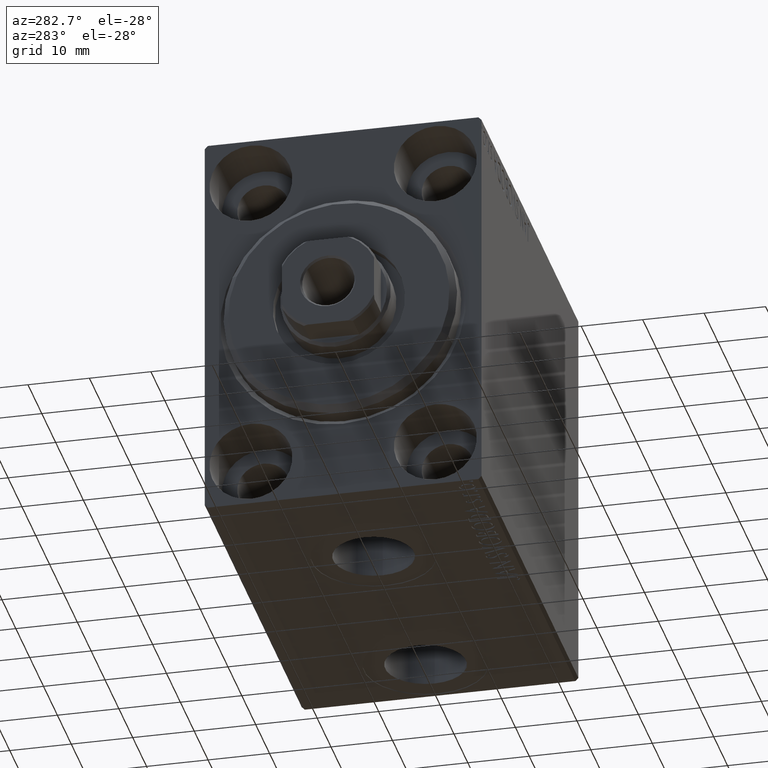
[diagram: clean part render]
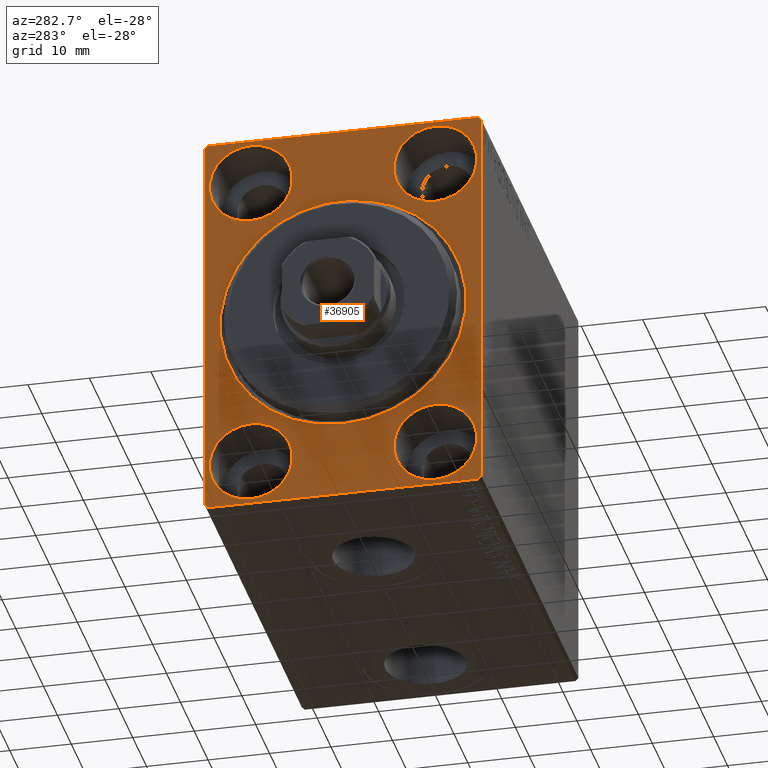
[diagram: same view with one face highlighted and labeled with its STEP entity id]
A machine part, auxiliary view. The second image highlights one B-rep face of the part: STEP entity #36905.
In plain terms, the highlighted planar face has unit normal (1, 0, 0).
Its self-contained STEP definition (entity closure, byte-faithful):
#57 = EDGE_LOOP ( 'NONE', ( #43364, #41787, #41578, #31301, #44993, #20171, #8469, #32865 ) ) ;
#558 = EDGE_CURVE ( 'NONE', #10505, #17862, #17185, .T. ) ;
#821 = CARTESIAN_POINT ( 'NONE',  ( 0.000000000000000000, 0.000000000000000000, 0.000000000000000000 ) ) ;
#833 = DIRECTION ( 'NONE',  ( 0.000000000000000000, 0.000000000000000000, 1.000000000000000000 ) ) ;
#902 = ORIENTED_EDGE ( 'NONE', *, *, #14904, .F. ) ;
#1113 = CIRCLE ( 'NONE', #15013, 6.749999999999999112 ) ;
#1177 = AXIS2_PLACEMENT_3D ( 'NONE', #29217, #8168, #12051 ) ;
#1277 = DIRECTION ( 'NONE',  ( -0.000000000000000000, 0.7071067811865425767, -0.7071067811865525687 ) ) ;
#1288 = ORIENTED_EDGE ( 'NONE', *, *, #13707, .F. ) ;
#1508 = CARTESIAN_POINT ( 'NONE',  ( 0.000000000000000000, -14.99999999999999645, 31.75000000000000000 ) ) ;
#1538 = FACE_OUTER_BOUND ( 'NONE', #57, .T. ) ;
#1744 = EDGE_CURVE ( 'NONE', #7949, #28147, #11422, .T. ) ;
#1944 = DIRECTION ( 'NONE',  ( -1.000000000000000000, 0.000000000000000000, 0.000000000000000000 ) ) ;
#2266 = CARTESIAN_POINT ( 'NONE',  ( 0.000000000000000000, 14.99999999999999645, -18.25000000000000355 ) ) ;
#2446 = CARTESIAN_POINT ( 'NONE',  ( 0.000000000000000000, 22.49999999999999289, 32.50000000000000000 ) ) ;
#2693 = LINE ( 'NONE', #38118, #2952 ) ;
#2952 = VECTOR ( 'NONE', #13429, 1000.000000000000000 ) ;
#2986 = VERTEX_POINT ( 'NONE', #23923 ) ;
#3179 = VERTEX_POINT ( 'NONE', #24994 ) ;
#3229 = DIRECTION ( 'NONE',  ( 1.000000000000000000, 0.000000000000000000, 0.000000000000000000 ) ) ;
#3465 = VERTEX_POINT ( 'NONE', #20168 ) ;
#4115 = CARTESIAN_POINT ( 'NONE',  ( 0.000000000000000000, 22.50000000000000000, -32.50000000000000711 ) ) ;
#4753 = DIRECTION ( 'NONE',  ( -1.000000000000000000, 0.000000000000000000, 0.000000000000000000 ) ) ;
#4797 = CARTESIAN_POINT ( 'NONE',  ( 0.000000000000000000, -22.50000000000000711, 31.99999999999999289 ) ) ;
#5031 = ORIENTED_EDGE ( 'NONE', *, *, #29304, .F. ) ;
#5114 = CIRCLE ( 'NONE', #40886, 20.00000000000000355 ) ;
#5692 = VERTEX_POINT ( 'NONE', #1508 ) ;
#6098 = LINE ( 'NONE', #2446, #41405 ) ;
#6295 = VERTEX_POINT ( 'NONE', #16243 ) ;
#6524 = CIRCLE ( 'NONE', #32103, 6.749999999999999112 ) ;
#6542 = ORIENTED_EDGE ( 'NONE', *, *, #6618, .F. ) ;
#6618 = EDGE_CURVE ( 'NONE', #37520, #25719, #32455, .T. ) ;
#7237 = CARTESIAN_POINT ( 'NONE',  ( 0.000000000000000000, -15.00000000000000355, -25.00000000000000000 ) ) ;
#7627 = VECTOR ( 'NONE', #18675, 1000.000000000000000 ) ;
#7944 = DIRECTION ( 'NONE',  ( 0.000000000000000000, 0.000000000000000000, -1.000000000000000000 ) ) ;
#7949 = VERTEX_POINT ( 'NONE', #12255 ) ;
#8168 = DIRECTION ( 'NONE',  ( -1.000000000000000000, 0.000000000000000000, 0.000000000000000000 ) ) ;
#8469 = ORIENTED_EDGE ( 'NONE', *, *, #22680, .F. ) ;
#8572 = CARTESIAN_POINT ( 'NONE',  ( 0.000000000000000000, 21.99999999999999289, 32.50000000000000000 ) ) ;
#9114 = CIRCLE ( 'NONE', #36885, 6.749999999999999112 ) ;
#9358 = ORIENTED_EDGE ( 'NONE', *, *, #32756, .F. ) ;
#9675 = VERTEX_POINT ( 'NONE', #26550 ) ;
#10505 = VERTEX_POINT ( 'NONE', #4797 ) ;
#10754 = CIRCLE ( 'NONE', #12990, 20.00000000000000355 ) ;
#11195 = CARTESIAN_POINT ( 'NONE',  ( 0.000000000000000000, -14.99999999999999645, 25.00000000000000000 ) ) ;
#11416 = CIRCLE ( 'NONE', #44280, 6.749999999999999112 ) ;
#11422 = LINE ( 'NONE', #4115, #35916 ) ;
#12051 = DIRECTION ( 'NONE',  ( 0.000000000000000000, 0.000000000000000000, 1.000000000000000000 ) ) ;
#12255 = CARTESIAN_POINT ( 'NONE',  ( 0.000000000000000000, 22.50000000000000000, -32.00000000000002132 ) ) ;
#12350 = VECTOR ( 'NONE', #42113, 1000.000000000000000 ) ;
#12678 = EDGE_LOOP ( 'NONE', ( #35898, #19641 ) ) ;
#12990 = AXIS2_PLACEMENT_3D ( 'NONE', #24053, #3229, #15113 ) ;
#13429 = DIRECTION ( 'NONE',  ( -0.000000000000000000, -0.7071067811865378028, 0.7071067811865573427 ) ) ;
#13539 = DIRECTION ( 'NONE',  ( -0.000000000000000000, 0.7071067811865474617, 0.7071067811865474617 ) ) ;
#13707 = EDGE_CURVE ( 'NONE', #25719, #37520, #9114, .T. ) ;
#14054 = CARTESIAN_POINT ( 'NONE',  ( 0.000000000000000000, 22.50000000000000000, -32.00000000000002132 ) ) ;
#14431 = EDGE_LOOP ( 'NONE', ( #43424, #37532 ) ) ;
#14781 = VERTEX_POINT ( 'NONE', #23577 ) ;
#14904 = EDGE_CURVE ( 'NONE', #5692, #38403, #1113, .T. ) ;
#15006 = DIRECTION ( 'NONE',  ( -1.000000000000000000, 0.000000000000000000, 0.000000000000000000 ) ) ;
#15013 = AXIS2_PLACEMENT_3D ( 'NONE', #11195, #39102, #24930 ) ;
#15041 = CIRCLE ( 'NONE', #1177, 6.749999999999999112 ) ;
#15113 = DIRECTION ( 'NONE',  ( 0.000000000000000000, 0.000000000000000000, -1.000000000000000000 ) ) ;
#16243 = CARTESIAN_POINT ( 'NONE',  ( 0.000000000000000000, 15.00000000000000355, 31.75000000000000000 ) ) ;
#17185 = LINE ( 'NONE', #17640, #34410 ) ;
#17640 = CARTESIAN_POINT ( 'NONE',  ( 0.000000000000000000, -22.50000000000000711, 31.99999999999999289 ) ) ;
#17730 = CARTESIAN_POINT ( 'NONE',  ( 0.000000000000000000, 14.99999999999999645, -25.00000000000000000 ) ) ;
#17862 = VERTEX_POINT ( 'NONE', #38851 ) ;
#18022 = CARTESIAN_POINT ( 'NONE',  ( 0.000000000000000000, 0.000000000000000000, 0.000000000000000000 ) ) ;
#18443 = LINE ( 'NONE', #35604, #7627 ) ;
#18675 = DIRECTION ( 'NONE',  ( 0.000000000000000000, 0.000000000000000000, -1.000000000000000000 ) ) ;
#18704 = DIRECTION ( 'NONE',  ( 0.000000000000000000, 0.000000000000000000, 1.000000000000000000 ) ) ;
#18928 = FACE_BOUND ( 'NONE', #40700, .T. ) ;
#19088 = CARTESIAN_POINT ( 'NONE',  ( 0.000000000000000000, -15.00000000000000355, -31.75000000000000000 ) ) ;
#19558 = DIRECTION ( 'NONE',  ( 0.000000000000000000, 0.000000000000000000, 1.000000000000000000 ) ) ;
#19641 = ORIENTED_EDGE ( 'NONE', *, *, #43394, .T. ) ;
#19648 = CARTESIAN_POINT ( 'NONE',  ( 0.000000000000000000, 15.00000000000000355, 25.00000000000000000 ) ) ;
#19772 = LINE ( 'NONE', #8572, #32050 ) ;
#20168 = CARTESIAN_POINT ( 'NONE',  ( 0.000000000000000000, -15.00000000000000355, -18.25000000000000355 ) ) ;
#20171 = ORIENTED_EDGE ( 'NONE', *, *, #27983, .T. ) ;
#20930 = EDGE_CURVE ( 'NONE', #2986, #14781, #10754, .T. ) ;
#21871 = CARTESIAN_POINT ( 'NONE',  ( 0.000000000000000000, 14.99999999999999645, -25.00000000000000000 ) ) ;
#22264 = CARTESIAN_POINT ( 'NONE',  ( 0.000000000000000000, 22.49999999999999289, 31.99999999999999289 ) ) ;
#22559 = EDGE_CURVE ( 'NONE', #29574, #3465, #6524, .T. ) ;
#22680 = EDGE_CURVE ( 'NONE', #37955, #37694, #30298, .T. ) ;
#23577 = CARTESIAN_POINT ( 'NONE',  ( 0.000000000000000000, 2.449293598294706907E-15, -20.00000000000000355 ) ) ;
#23662 = LINE ( 'NONE', #14054, #38408 ) ;
#23812 = EDGE_CURVE ( 'NONE', #10505, #36919, #18443, .T. ) ;
#23923 = CARTESIAN_POINT ( 'NONE',  ( 0.000000000000000000, 0.000000000000000000, 20.00000000000000355 ) ) ;
#24053 = CARTESIAN_POINT ( 'NONE',  ( 0.000000000000000000, 0.000000000000000000, 0.000000000000000000 ) ) ;
#24194 = EDGE_LOOP ( 'NONE', ( #1288, #6542 ) ) ;
#24930 = DIRECTION ( 'NONE',  ( 0.000000000000000000, 0.000000000000000000, 1.000000000000000000 ) ) ;
#24994 = CARTESIAN_POINT ( 'NONE',  ( 0.000000000000000000, 15.00000000000000355, 18.25000000000000355 ) ) ;
#25103 = CARTESIAN_POINT ( 'NONE',  ( 0.000000000000000000, -22.50000000000000711, -32.00000000000000711 ) ) ;
#25336 = FACE_BOUND ( 'NONE', #24194, .T. ) ;
#25719 = VERTEX_POINT ( 'NONE', #2266 ) ;
#25847 = CARTESIAN_POINT ( 'NONE',  ( 0.000000000000000000, 14.99999999999999645, -31.75000000000000000 ) ) ;
#26550 = CARTESIAN_POINT ( 'NONE',  ( 0.000000000000000000, 21.99999999999999289, 32.50000000000000000 ) ) ;
#26849 = EDGE_CURVE ( 'NONE', #3465, #29574, #40556, .T. ) ;
#26875 = CARTESIAN_POINT ( 'NONE',  ( 0.000000000000000000, -15.00000000000000355, -25.00000000000000000 ) ) ;
#27317 = DIRECTION ( 'NONE',  ( 0.000000000000000000, -0.7071067811865376918, -0.7071067811865573427 ) ) ;
#27983 = EDGE_CURVE ( 'NONE', #7949, #37694, #23662, .T. ) ;
#28147 = VERTEX_POINT ( 'NONE', #22264 ) ;
#28178 = CARTESIAN_POINT ( 'NONE',  ( 0.000000000000000000, -22.50000000000000711, -32.50000000000000711 ) ) ;
#29217 = CARTESIAN_POINT ( 'NONE',  ( 0.000000000000000000, 15.00000000000000355, 25.00000000000000000 ) ) ;
#29220 = FACE_BOUND ( 'NONE', #12678, .T. ) ;
#29304 = EDGE_CURVE ( 'NONE', #38403, #5692, #11416, .T. ) ;
#29574 = VERTEX_POINT ( 'NONE', #19088 ) ;
#30298 = LINE ( 'NONE', #28178, #12350 ) ;
#31301 = ORIENTED_EDGE ( 'NONE', *, *, #40314, .T. ) ;
#31964 = DIRECTION ( 'NONE',  ( 1.000000000000000000, 0.000000000000000000, 0.000000000000000000 ) ) ;
#32050 = VECTOR ( 'NONE', #1277, 999.9999999999998863 ) ;
#32103 = AXIS2_PLACEMENT_3D ( 'NONE', #7237, #15006, #42221 ) ;
#32428 = CARTESIAN_POINT ( 'NONE',  ( 0.000000000000000000, -22.00000000000002132, -32.50000000000000711 ) ) ;
#32455 = CIRCLE ( 'NONE', #41901, 6.749999999999999112 ) ;
#32756 = EDGE_CURVE ( 'NONE', #3179, #6295, #15041, .T. ) ;
#32865 = ORIENTED_EDGE ( 'NONE', *, *, #44997, .T. ) ;
#32870 = FACE_BOUND ( 'NONE', #14431, .T. ) ;
#33594 = DIRECTION ( 'NONE',  ( -1.000000000000000000, 0.000000000000000000, 0.000000000000000000 ) ) ;
#34301 = AXIS2_PLACEMENT_3D ( 'NONE', #19648, #33594, #43430 ) ;
#34410 = VECTOR ( 'NONE', #13539, 1000.000000000000114 ) ;
#35392 = PLANE ( 'NONE',  #41443 ) ;
#35447 = AXIS2_PLACEMENT_3D ( 'NONE', #26875, #1944, #19558 ) ;
#35448 = ORIENTED_EDGE ( 'NONE', *, *, #42124, .F. ) ;
#35488 = EDGE_CURVE ( 'NONE', #9675, #17862, #6098, .T. ) ;
#35604 = CARTESIAN_POINT ( 'NONE',  ( 0.000000000000000000, -22.50000000000000711, 32.49999999999999289 ) ) ;
#35898 = ORIENTED_EDGE ( 'NONE', *, *, #20930, .T. ) ;
#35916 = VECTOR ( 'NONE', #42981, 1000.000000000000000 ) ;
#36080 = CARTESIAN_POINT ( 'NONE',  ( 0.000000000000000000, -14.99999999999999645, 25.00000000000000000 ) ) ;
#36885 = AXIS2_PLACEMENT_3D ( 'NONE', #21871, #39247, #833 ) ;
#36905 = ADVANCED_FACE ( 'NONE', ( #29220, #25336, #18928, #43161, #32870, #1538 ), #35392, .F. ) ;
#36919 = VERTEX_POINT ( 'NONE', #25103 ) ;
#37520 = VERTEX_POINT ( 'NONE', #25847 ) ;
#37532 = ORIENTED_EDGE ( 'NONE', *, *, #22559, .F. ) ;
#37694 = VERTEX_POINT ( 'NONE', #37706 ) ;
#37706 = CARTESIAN_POINT ( 'NONE',  ( 0.000000000000000000, 22.00000000000001421, -32.50000000000000711 ) ) ;
#37955 = VERTEX_POINT ( 'NONE', #32428 ) ;
#38118 = CARTESIAN_POINT ( 'NONE',  ( 0.000000000000000000, -22.00000000000002132, -32.50000000000000711 ) ) ;
#38403 = VERTEX_POINT ( 'NONE', #42152 ) ;
#38408 = VECTOR ( 'NONE', #27317, 1000.000000000000114 ) ;
#38851 = CARTESIAN_POINT ( 'NONE',  ( 0.000000000000000000, -21.99999999999999289, 32.49999999999999289 ) ) ;
#39005 = DIRECTION ( 'NONE',  ( 0.000000000000000000, 0.000000000000000000, -1.000000000000000000 ) ) ;
#39102 = DIRECTION ( 'NONE',  ( -1.000000000000000000, 0.000000000000000000, 0.000000000000000000 ) ) ;
#39247 = DIRECTION ( 'NONE',  ( -1.000000000000000000, 0.000000000000000000, 0.000000000000000000 ) ) ;
#40314 = EDGE_CURVE ( 'NONE', #9675, #28147, #19772, .T. ) ;
#40556 = CIRCLE ( 'NONE', #35447, 6.749999999999999112 ) ;
#40700 = EDGE_LOOP ( 'NONE', ( #902, #5031 ) ) ;
#40886 = AXIS2_PLACEMENT_3D ( 'NONE', #821, #42208, #39005 ) ;
#41405 = VECTOR ( 'NONE', #44057, 1000.000000000000000 ) ;
#41443 = AXIS2_PLACEMENT_3D ( 'NONE', #18022, #31964, #7944 ) ;
#41521 = DIRECTION ( 'NONE',  ( -1.000000000000000000, 0.000000000000000000, 0.000000000000000000 ) ) ;
#41563 = CIRCLE ( 'NONE', #34301, 6.749999999999999112 ) ;
#41578 = ORIENTED_EDGE ( 'NONE', *, *, #35488, .F. ) ;
#41787 = ORIENTED_EDGE ( 'NONE', *, *, #558, .T. ) ;
#41901 = AXIS2_PLACEMENT_3D ( 'NONE', #17730, #41521, #45173 ) ;
#42113 = DIRECTION ( 'NONE',  ( 0.000000000000000000, 1.000000000000000000, 0.000000000000000000 ) ) ;
#42124 = EDGE_CURVE ( 'NONE', #6295, #3179, #41563, .T. ) ;
#42152 = CARTESIAN_POINT ( 'NONE',  ( 0.000000000000000000, -14.99999999999999645, 18.25000000000000355 ) ) ;
#42208 = DIRECTION ( 'NONE',  ( 1.000000000000000000, 0.000000000000000000, 0.000000000000000000 ) ) ;
#42221 = DIRECTION ( 'NONE',  ( 0.000000000000000000, 0.000000000000000000, 1.000000000000000000 ) ) ;
#42817 = EDGE_LOOP ( 'NONE', ( #35448, #9358 ) ) ;
#42981 = DIRECTION ( 'NONE',  ( 0.000000000000000000, -1.067522139062650425E-16, 1.000000000000000000 ) ) ;
#43161 = FACE_BOUND ( 'NONE', #42817, .T. ) ;
#43364 = ORIENTED_EDGE ( 'NONE', *, *, #23812, .F. ) ;
#43394 = EDGE_CURVE ( 'NONE', #14781, #2986, #5114, .T. ) ;
#43424 = ORIENTED_EDGE ( 'NONE', *, *, #26849, .F. ) ;
#43430 = DIRECTION ( 'NONE',  ( 0.000000000000000000, 0.000000000000000000, 1.000000000000000000 ) ) ;
#44057 = DIRECTION ( 'NONE',  ( 0.000000000000000000, -1.000000000000000000, -1.541976423090495387E-16 ) ) ;
#44280 = AXIS2_PLACEMENT_3D ( 'NONE', #36080, #4753, #18704 ) ;
#44993 = ORIENTED_EDGE ( 'NONE', *, *, #1744, .F. ) ;
#44997 = EDGE_CURVE ( 'NONE', #37955, #36919, #2693, .T. ) ;
#45173 = DIRECTION ( 'NONE',  ( 0.000000000000000000, 0.000000000000000000, 1.000000000000000000 ) ) ;